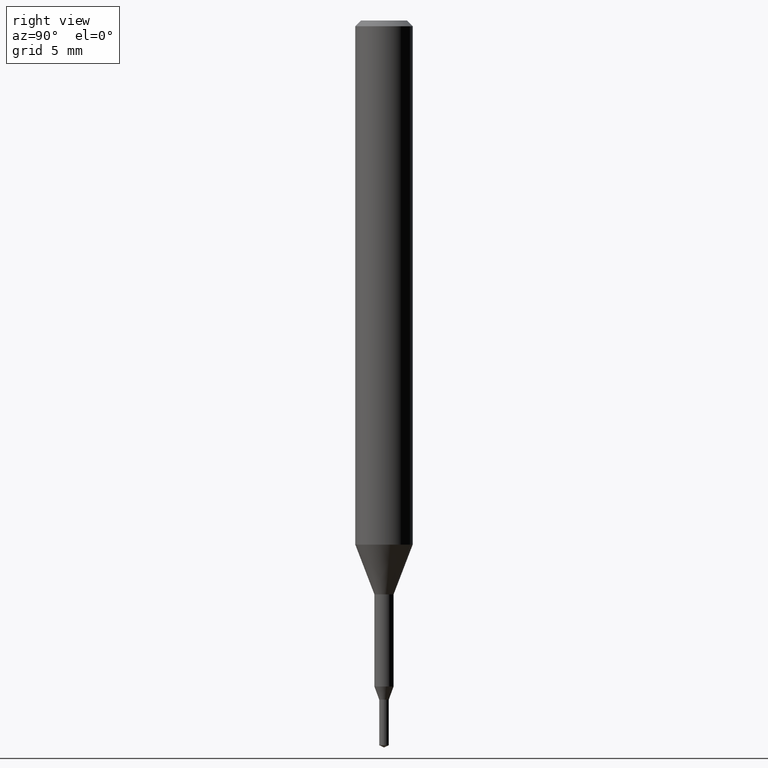
[diagram: clean part render]
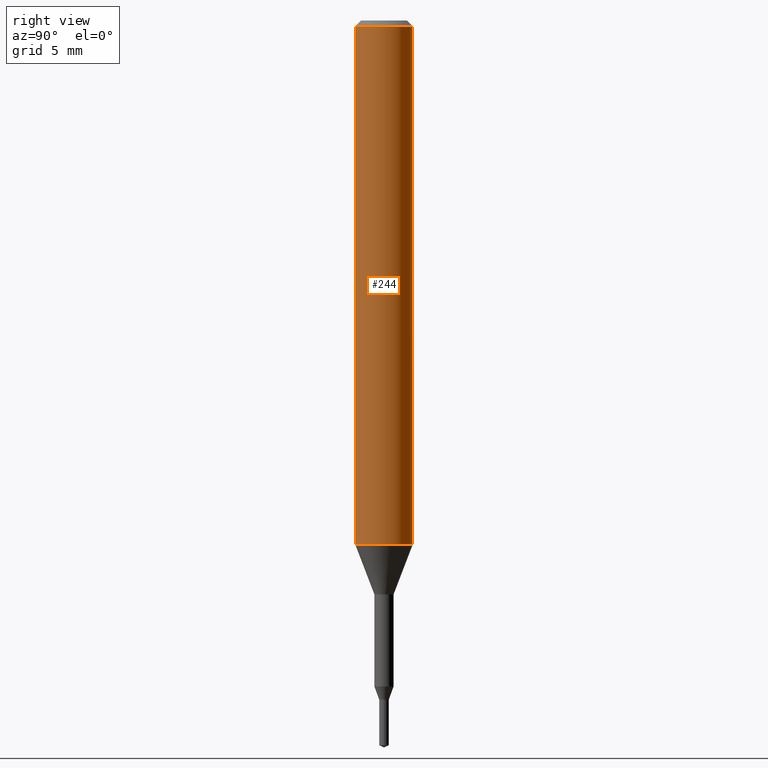
[diagram: same view with one face highlighted and labeled with its STEP entity id]
A machine part, right view. The second image highlights one B-rep face of the part: STEP entity #244.
In plain terms, the highlighted cylindrical surface (edge-blend (fillet) strip) has radius 1.5 mm, axis along (-0, -0, 1).
Its self-contained STEP definition (entity closure, byte-faithful):
#172=VERTEX_POINT('',#356);
#194=EDGE_CURVE('',#266,#172,#379,.T.);
#196=EDGE_CURVE('',#236,#212,#381,.T.);
#198=EDGE_CURVE('',#266,#212,#383,.T.);
#212=VERTEX_POINT('',#401);
#220=EDGE_CURVE('',#172,#236,#409,.T.);
#236=VERTEX_POINT('',#426);
#244=ADVANCED_FACE('',(#435),#436,.T.);
#266=VERTEX_POINT('',#463);
#356=CARTESIAN_POINT('',(0.0,1.5,-27.395));
#379=LINE('',#594,#595);
#381=LINE('',#598,#599);
#383=CIRCLE('',#602,1.5);
#401=CARTESIAN_POINT('',(1.83690953073357E-016,-1.5,-0.300000000000001));
#409=CIRCLE('',#635,1.5);
#426=CARTESIAN_POINT('',(1.83690953073357E-016,-1.5,-27.395));
#435=FACE_OUTER_BOUND('',#669,.T.);
#436=CYLINDRICAL_SURFACE('',#670,1.5);
#463=CARTESIAN_POINT('',(0.0,1.5,-0.300000000000001));
#594=CARTESIAN_POINT('',(-1.83690953073357E-016,1.5,-13.8475));
#595=VECTOR('',#814,1.0);
#598=CARTESIAN_POINT('',(1.83690953073357E-016,-1.5,-13.8475));
#599=VECTOR('',#815,1.0);
#602=AXIS2_PLACEMENT_3D('',#816,#817,#818);
#635=AXIS2_PLACEMENT_3D('',#849,#850,#851);
#669=EDGE_LOOP('',(#878,#879,#880,#881));
#670=AXIS2_PLACEMENT_3D('',#882,#883,#884);
#814=DIRECTION('',(0.0,0.0,-1.0));
#815=DIRECTION('',(-0.0,-0.0,1.0));
#816=CARTESIAN_POINT('',(0.0,0.0,-0.300000000000001));
#817=DIRECTION('',(0.0,0.0,-1.0));
#818=DIRECTION('',(0.0,1.0,0.0));
#849=CARTESIAN_POINT('',(0.0,0.0,-27.395));
#850=DIRECTION('',(0.0,0.0,-1.0));
#851=DIRECTION('',(0.0,1.0,0.0));
#878=ORIENTED_EDGE('',*,*,#194,.F.);
#879=ORIENTED_EDGE('',*,*,#198,.T.);
#880=ORIENTED_EDGE('',*,*,#196,.F.);
#881=ORIENTED_EDGE('',*,*,#220,.F.);
#882=CARTESIAN_POINT('',(0.0,0.0,-13.8475));
#883=DIRECTION('',(-0.0,-0.0,1.0));
#884=DIRECTION('',(0.0,1.0,0.0));